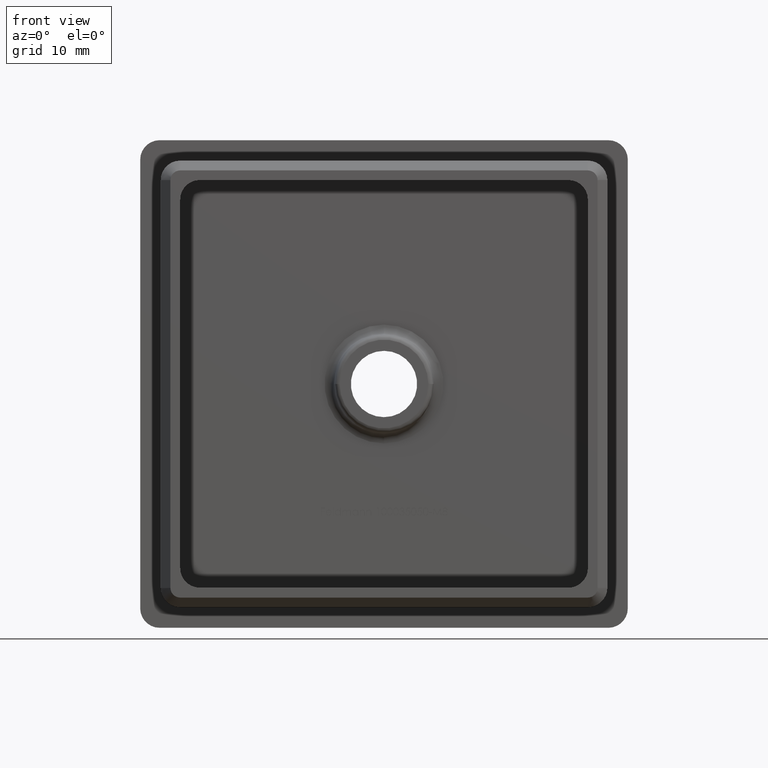
[diagram: clean part render]
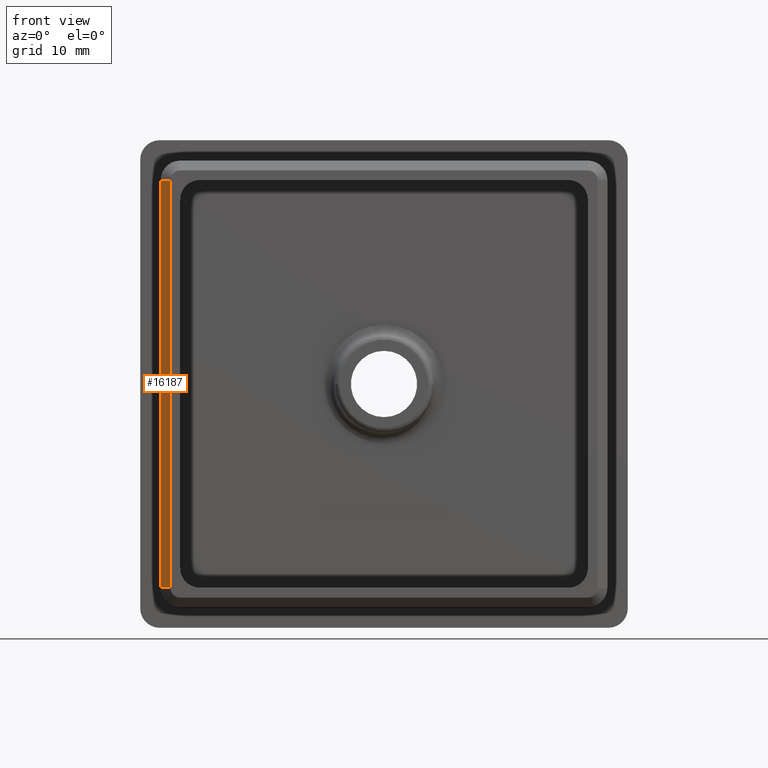
[diagram: same view with one face highlighted and labeled with its STEP entity id]
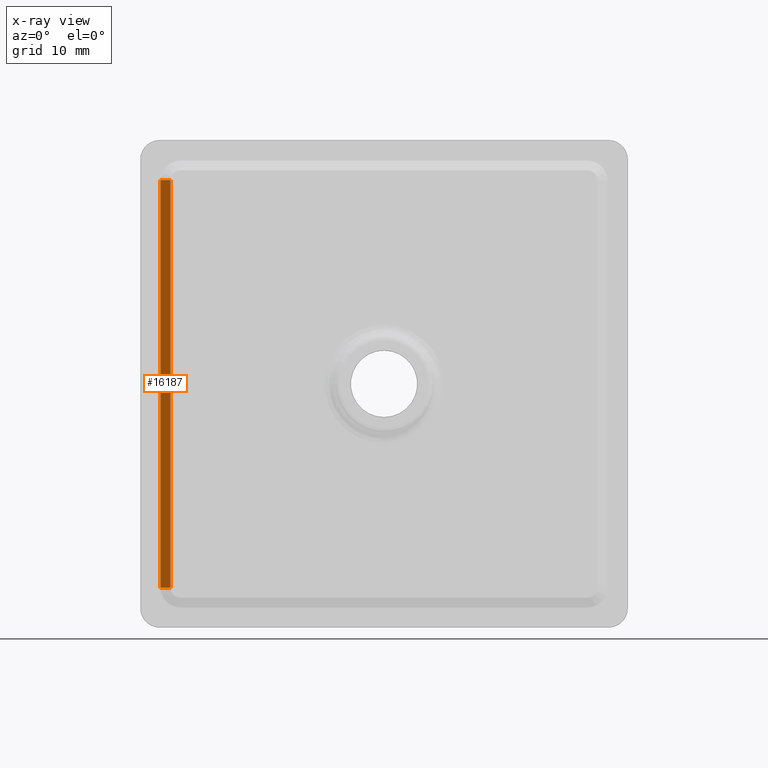
[diagram: x-ray of the same camera — body ghosted, the highlighted face saturated]
A machine part, front view. The second image highlights one B-rep face of the part: STEP entity #16187.
The next image is the same camera in x-ray: the body ghosted, the highlighted face saturated — about 0% of this face is hidden behind the body in this view.
In plain terms, the highlighted planar face has unit normal (-0.7071, -0.7071, 0).
Its self-contained STEP definition (entity closure, byte-faithful):
#71 = DIRECTION ( 'NONE',  ( -0.7071067811865475700, -0.7071067811865475700, 0.0000000000000000000 ) ) ;
#361 = ORIENTED_EDGE ( 'NONE', *, *, #17857, .F. ) ;
#1728 = DIRECTION ( 'NONE',  ( -0.7071067811865474600, 0.7071067811865474600, -2.453269466693379700E-015 ) ) ;
#1932 = VECTOR ( 'NONE', #6893, 1000.000000000000100 ) ;
#2240 = CARTESIAN_POINT ( 'NONE',  ( -21.89999999999997700, -20.00000000000000000, 20.89999999999998800 ) ) ;
#2400 = LINE ( 'NONE', #13617, #1932 ) ;
#2731 = DIRECTION ( 'NONE',  ( -0.0000000000000000000, 0.0000000000000000000, 1.000000000000000000 ) ) ;
#4683 = DIRECTION ( 'NONE',  ( 0.0000000000000000000, 0.0000000000000000000, 1.000000000000000000 ) ) ;
#4694 = CARTESIAN_POINT ( 'NONE',  ( -21.89999999999997700, -20.00000000000000000, -20.89999999999999100 ) ) ;
#4798 = CARTESIAN_POINT ( 'NONE',  ( -22.89999999999998800, -18.99999999999999300, 20.89999999999998800 ) ) ;
#4909 = VERTEX_POINT ( 'NONE', #7487 ) ;
#5191 = LINE ( 'NONE', #10084, #11470 ) ;
#5470 = AXIS2_PLACEMENT_3D ( 'NONE', #15266, #71, #2731 ) ;
#5570 = CARTESIAN_POINT ( 'NONE',  ( -21.89999999999997700, -20.00000000000000000, -20.89999999999998800 ) ) ;
#5589 = LINE ( 'NONE', #4798, #11669 ) ;
#6473 = VECTOR ( 'NONE', #17060, 1000.000000000000000 ) ;
#6564 = EDGE_LOOP ( 'NONE', ( #361, #15758, #10547, #12385 ) ) ;
#6893 = DIRECTION ( 'NONE',  ( 0.7071067811865474600, -0.7071067811865474600, 0.0000000000000000000 ) ) ;
#6907 = FACE_OUTER_BOUND ( 'NONE', #6564, .T. ) ;
#7487 = CARTESIAN_POINT ( 'NONE',  ( -22.89999999999998800, -18.99999999999999300, -20.89999999999999100 ) ) ;
#8710 = VERTEX_POINT ( 'NONE', #5570 ) ;
#9356 = CARTESIAN_POINT ( 'NONE',  ( -22.89999999999998800, -18.99999999999999300, 20.89999999999998800 ) ) ;
#10084 = CARTESIAN_POINT ( 'NONE',  ( -21.89999999999997700, -20.00000000000000000, -20.89999999999998800 ) ) ;
#10547 = ORIENTED_EDGE ( 'NONE', *, *, #15278, .F. ) ;
#11470 = VECTOR ( 'NONE', #1728, 1000.000000000000100 ) ;
#11669 = VECTOR ( 'NONE', #4683, 1000.000000000000000 ) ;
#11896 = LINE ( 'NONE', #4694, #6473 ) ;
#12385 = ORIENTED_EDGE ( 'NONE', *, *, #16344, .F. ) ;
#13617 = CARTESIAN_POINT ( 'NONE',  ( -22.89999999999998800, -18.99999999999999300, 20.89999999999998800 ) ) ;
#14536 = EDGE_CURVE ( 'NONE', #4909, #14838, #5589, .T. ) ;
#14838 = VERTEX_POINT ( 'NONE', #9356 ) ;
#15266 = CARTESIAN_POINT ( 'NONE',  ( -21.89999999999997700, -20.00000000000000000, 0.0000000000000000000 ) ) ;
#15278 = EDGE_CURVE ( 'NONE', #8710, #4909, #5191, .T. ) ;
#15758 = ORIENTED_EDGE ( 'NONE', *, *, #14536, .F. ) ;
#16187 = ADVANCED_FACE ( 'NONE', ( #6907 ), #16597, .T. ) ;
#16344 = EDGE_CURVE ( 'NONE', #16393, #8710, #11896, .T. ) ;
#16393 = VERTEX_POINT ( 'NONE', #2240 ) ;
#16597 = PLANE ( 'NONE',  #5470 ) ;
#17060 = DIRECTION ( 'NONE',  ( 0.0000000000000000000, 0.0000000000000000000, -1.000000000000000000 ) ) ;
#17857 = EDGE_CURVE ( 'NONE', #14838, #16393, #2400, .T. ) ;